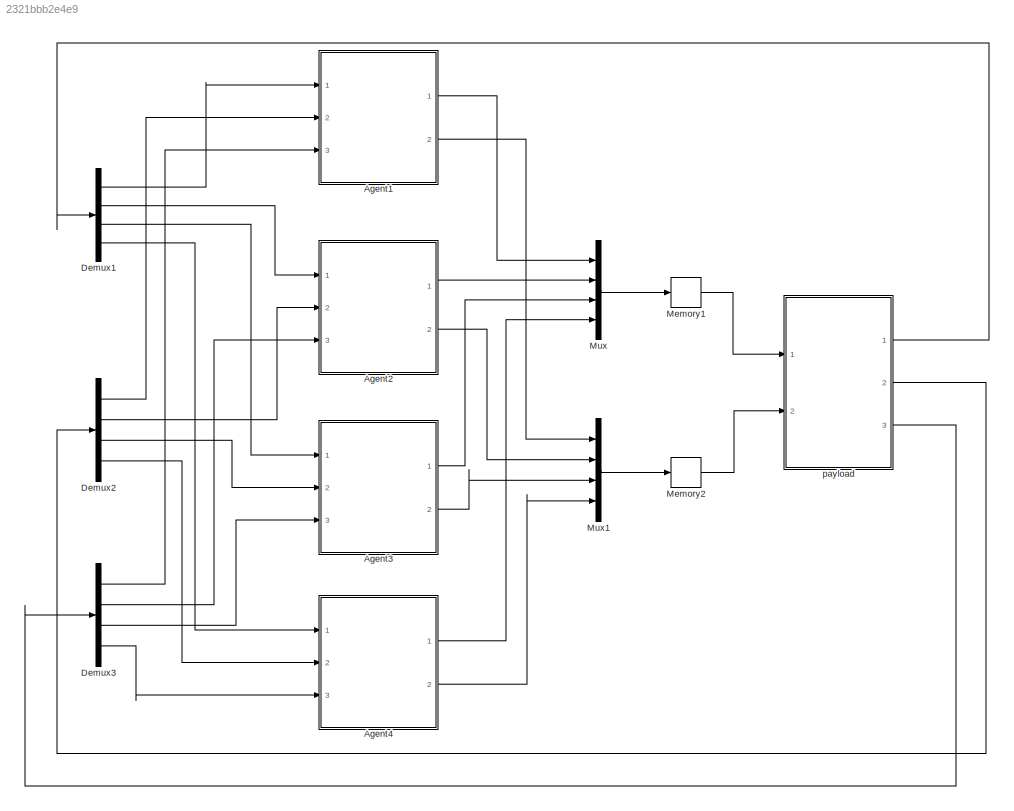
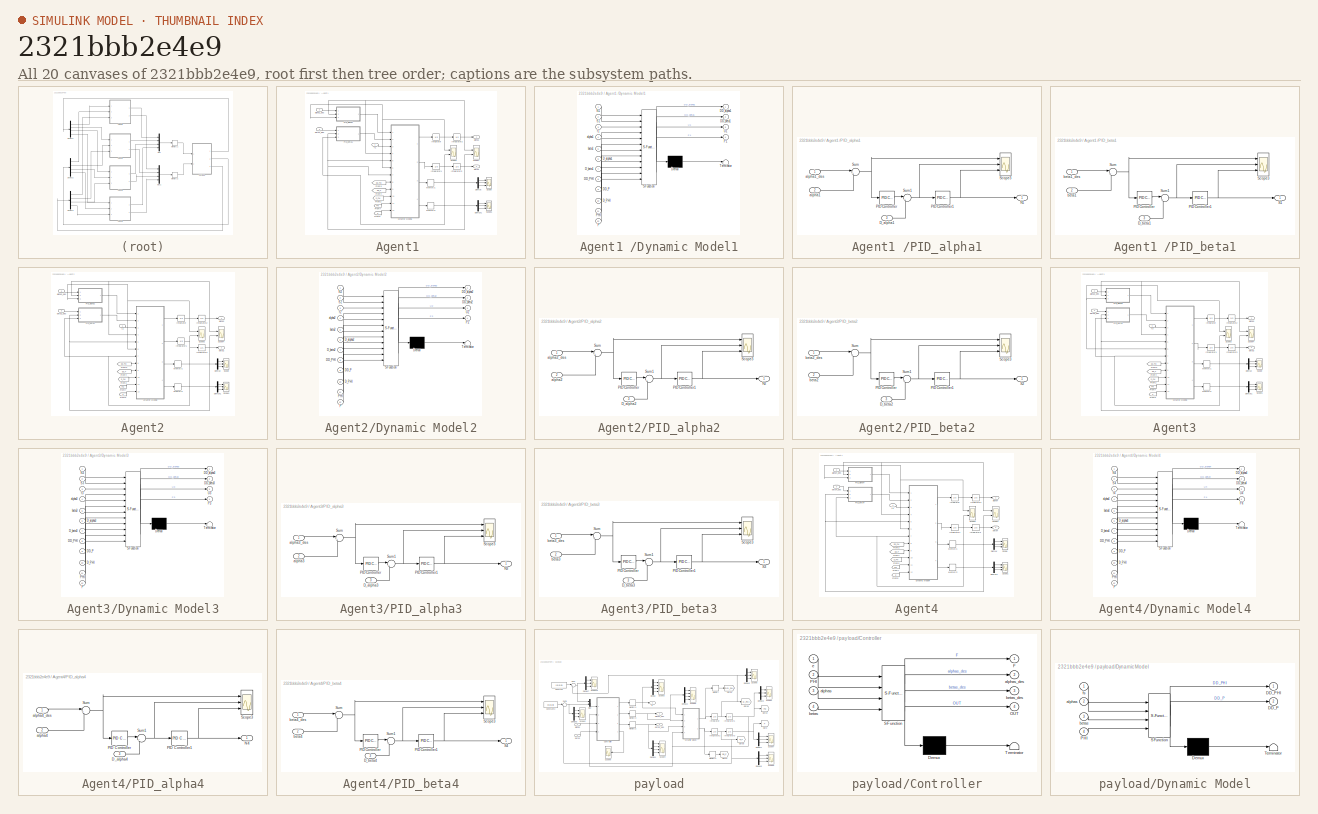
[diagram: thumbnail index - all 20 canvases of the model, root first then tree order]
MODEL slx_2321bbb2e4e9
KIND model
CONFIG AbsTol = auto
CONFIG EnableMultiTasking = off
CONFIG FixedStep = auto
CONFIG InitFcn = Simple_4Quad_payload_01_const
CONFIG MaxStep = auto
CONFIG MinStep = auto
CONFIG RelTol = 1e-3
CONFIG SampleTimeConstraint = Unconstrained
CONFIG Solver = VariableStepAuto
CONFIG SolverName = VariableStepAuto
CONFIG StartTime = 0.0
CONFIG StopTime = 60
BLOCK [SubSystem] Agent1 
  Ports = [3, 2]
  RequestExecContextInheritance = off
BLOCK [Demux] Agent1 /Demux
  DisplayOption = bar
  Outputs = 3
  Ports = [1, 3]
BLOCK [Demux] Agent1 /Demux1
  DisplayOption = bar
  Outputs = 3
  Ports = [1, 3]
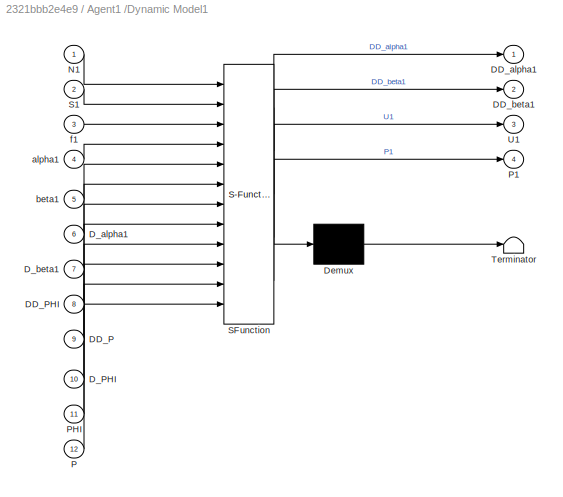
BLOCK [SubSystem] Agent1 /Dynamic Model1
  ErrorFcn = Stateflow.Translate.translate
  PermitHierarchicalResolution = ExplicitOnly
  Ports = [12, 4]
  RequestExecContextInheritance = off
  SFBlockType = MATLAB Function
  TreatAsAtomicUnit = on
BLOCK [Demux] Agent1 /Dynamic Model1/ Demux 
  Outputs = 1
  Ports = [1, 1]
BLOCK [S-Function] Agent1 /Dynamic Model1/ SFunction 
  EnableBusSupport = on
  FunctionName = sf_sfun
  Parameters = d1,g,l,m
  PortCounts = [12 5]
  Ports = [12, 5]
  SFcnIsStateOwnerBlock = off
  SFunctionDeploymentMode = off
  Tag = Stateflow S-Function Simple_4Quad_payload_01 4
BLOCK [Terminator] Agent1 /Dynamic Model1/ Terminator 
BLOCK [Inport] Agent1 /Dynamic Model1/DD_P
  IconDisplay = Port number
  Port = 9
BLOCK [Inport] Agent1 /Dynamic Model1/DD_PHI
  IconDisplay = Port number
  Port = 8
BLOCK [Outport] Agent1 /Dynamic Model1/DD_alpha1
  IconDisplay = Port number
BLOCK [Outport] Agent1 /Dynamic Model1/DD_beta1
  IconDisplay = Port number
  Port = 2
BLOCK [Inport] Agent1 /Dynamic Model1/D_PHI
  IconDisplay = Port number
  Port = 10
BLOCK [Inport] Agent1 /Dynamic Model1/D_alpha1
  IconDisplay = Port number
  Port = 6
BLOCK [Inport] Agent1 /Dynamic Model1/D_beta1
  IconDisplay = Port number
  Port = 7
BLOCK [Inport] Agent1 /Dynamic Model1/N1
  IconDisplay = Port number
BLOCK [Inport] Agent1 /Dynamic Model1/P
  IconDisplay = Port number
  Port = 12
BLOCK [Outport] Agent1 /Dynamic Model1/P1
  IconDisplay = Port number
  Port = 4
BLOCK [Inport] Agent1 /Dynamic Model1/PHI
  IconDisplay = Port number
  Port = 11
BLOCK [Inport] Agent1 /Dynamic Model1/S1
  IconDisplay = Port number
  Port = 2
BLOCK [Outport] Agent1 /Dynamic Model1/U1
  IconDisplay = Port number
  Port = 3
BLOCK [Inport] Agent1 /Dynamic Model1/alpha1
  IconDisplay = Port number
  Port = 4
BLOCK [Inport] Agent1 /Dynamic Model1/beta1
  IconDisplay = Port number
  Port = 5
BLOCK [Inport] Agent1 /Dynamic Model1/f1
  IconDisplay = Port number
  Port = 3
BLOCK [From] Agent1 /From2
  GotoTag = D_PHI
  TagVisibility = global
BLOCK [From] Agent1 /From3
  GotoTag = DD_PHI
  TagVisibility = global
BLOCK [From] Agent1 /From4
  GotoTag = DD_P
  TagVisibility = global
BLOCK [From] Agent1 /From5
  GotoTag = P
  TagVisibility = global
BLOCK [From] Agent1 /From7
  GotoTag = PHI
  TagVisibility = global
BLOCK [Integrator] Agent1 /Integrator
  Ports = [1, 1]
BLOCK [Integrator] Agent1 /Integrator1
  Ports = [1, 1]
BLOCK [Integrator] Agent1 /Integrator2
  InitialCondition = pi/2
  Ports = [1, 1]
BLOCK [Integrator] Agent1 /Integrator3
  Ports = [1, 1]
BLOCK [Memory] Agent1 /Memory1
  InitialCondition = zeros(3,1)
BLOCK [Memory] Agent1 /Memory2
  InitialCondition = zeros(3,1)
BLOCK [SubSystem] Agent1 /PID_alpha1
  Ports = [3, 1]
  RequestExecContextInheritance = off
BLOCK [Inport] Agent1 /PID_alpha1/D_alpha1
  IconDisplay = Port number
  Port = 3
BLOCK [Outport] Agent1 /PID_alpha1/N1
  IconDisplay = Port number
BLOCK [Reference] Agent1 /PID_alpha1/PID Controller  REF=simulink/Continuous/PID Controller
  Ports = [1, 1]
  SourceBlock = simulink/Continuous/PID Controller
  SourceProductBaseCode = SL
  SourceProductName = Simulink
  SourceType = PID 1dof
BLOCK [Reference] Agent1 /PID_alpha1/PID Controller1  REF=simulink/Continuous/PID Controller
  Ports = [1, 1]
  SourceBlock = simulink/Continuous/PID Controller
  SourceProductBaseCode = SL
  SourceProductName = Simulink
  SourceType = PID 1dof
BLOCK [Scope] Agent1 /PID_alpha1/Scope3
  Floating = off
  NumInputPorts = 3
  Ports = [3]
  ScopeSpecificationString = Simulink.scopes.TimeScopeBlockCfg('CurrentConfiguration', extmgr.ConfigurationSet(extmgr.Configuration('Core','General UI',true),extmgr.Configuration('Core','Source UI',true),extmgr.Configuration('Sources','WiredSimulink',true,'DataLoggingVariableName','ScopeData12'),extmgr.Configuration('Visuals','Time Domain',true,'SerializedDisplays',{struct('MinYLimReal','-1.76763','MaxYLimReal','0.2007','YLab...<+2680ch>  <repeated x8 — deduplicated; at blocks: Scope3>
BLOCK [Sum] Agent1 /PID_alpha1/Sum
  IconShape = round
  InputSameDT = off
  Inputs = |+-
  OutDataTypeStr = Inherit: Inherit via internal rule
  Ports = [2, 1]
  SaturateOnIntegerOverflow = off
BLOCK [Sum] Agent1 /PID_alpha1/Sum1
  IconShape = round
  InputSameDT = off
  Inputs = |+-
  OutDataTypeStr = Inherit: Inherit via internal rule
  Ports = [2, 1]
  SaturateOnIntegerOverflow = off
BLOCK [Inport] Agent1 /PID_alpha1/alpha1
  IconDisplay = Port number
  Port = 2
BLOCK [Inport] Agent1 /PID_alpha1/alpha1_des
  IconDisplay = Port number
BLOCK [SubSystem] Agent1 /PID_beta1
  Ports = [3, 1]
  RequestExecContextInheritance = off
BLOCK [Inport] Agent1 /PID_beta1/D_beta1
  IconDisplay = Port number
  Port = 3
BLOCK [Reference] Agent1 /PID_beta1/PID Controller  REF=simulink/Continuous/PID Controller
  Ports = [1, 1]
  SourceBlock = simulink/Continuous/PID Controller
  SourceProductBaseCode = SL
  SourceProductName = Simulink
  SourceType = PID 1dof
BLOCK [Reference] Agent1 /PID_beta1/PID Controller1  REF=simulink/Continuous/PID Controller
  Ports = [1, 1]
  SourceBlock = simulink/Continuous/PID Controller
  SourceProductBaseCode = SL
  SourceProductName = Simulink
  SourceType = PID 1dof
BLOCK [Outport] Agent1 /PID_beta1/S1
  IconDisplay = Port number
BLOCK [Scope] Agent1 /PID_beta1/Scope3
  Floating = off
  NumInputPorts = 3
  Ports = [3]
BLOCK [Sum] Agent1 /PID_beta1/Sum
  IconShape = round
  InputSameDT = off
  Inputs = |+-
  OutDataTypeStr = Inherit: Inherit via internal rule
  Ports = [2, 1]
  SaturateOnIntegerOverflow = off
BLOCK [Sum] Agent1 /PID_beta1/Sum1
  IconShape = round
  InputSameDT = off
  Inputs = |+-
  OutDataTypeStr = Inherit: Inherit via internal rule
  Ports = [2, 1]
  SaturateOnIntegerOverflow = off
BLOCK [Inport] Agent1 /PID_beta1/beta1
  IconDisplay = Port number
  Port = 2
BLOCK [Inport] Agent1 /PID_beta1/beta1_des
  IconDisplay = Port number
BLOCK [Scope] Agent1 /Scope
  Floating = off
  NumInputPorts = 3
  Ports = [3]
  ScopeSpecificationString = Simulink.scopes.TimeScopeBlockCfg('CurrentConfiguration', extmgr.ConfigurationSet(extmgr.Configuration('Core','General UI',true),extmgr.Configuration('Core','Source UI',true),extmgr.Configuration('Sources','WiredSimulink',true,'DataLoggingVariableName','ScopeData6'),extmgr.Configuration('Visuals','Time Domain',true,'SerializedDisplays',{struct('MinYLimReal','-202.65399','MaxYLimReal','1767.84636',...<+2859ch>  <repeated x4 — deduplicated; at blocks: Scope>
BLOCK [Scope] Agent1 /Scope1
  Floating = off
  NumInputPorts = 3
  Ports = [3]
  ScopeSpecificationString = Simulink.scopes.TimeScopeBlockCfg('CurrentConfiguration', extmgr.ConfigurationSet(extmgr.Configuration('Core','General UI',true),extmgr.Configuration('Core','Source UI',true),extmgr.Configuration('Sources','WiredSimulink',true,'DataLoggingVariableName','ScopeData9'),extmgr.Configuration('Visuals','Time Domain',true,'SerializedDisplays',{struct('MinYLimReal','-202.65399','MaxYLimReal','1767.84636',...<+2859ch>  <repeated x4 — deduplicated; at blocks: Scope1>
BLOCK [Scope] Agent1 /Scope2
  Floating = off
  NumInputPorts = 2
  Ports = [2]
  ScopeSpecificationString = Simulink.scopes.TimeScopeBlockCfg('CurrentConfiguration', extmgr.ConfigurationSet(extmgr.Configuration('Core','General UI',true),extmgr.Configuration('Core','Source UI',true),extmgr.Configuration('Sources','WiredSimulink',true,'DataLoggingVariableName','ScopeData9'),extmgr.Configuration('Visuals','Time Domain',true,'SerializedDisplays',{struct('MinYLimReal','-1.00000','MaxYLimReal','1.00000','YLab...<+2312ch>  <repeated x4 — deduplicated; at blocks: Scope2>
BLOCK [Scope] Agent1 /Scope4
  Floating = off
  NumInputPorts = 2
  Ports = [2]
  ScopeSpecificationString = Simulink.scopes.TimeScopeBlockCfg('CurrentConfiguration', extmgr.ConfigurationSet(extmgr.Configuration('Core','General UI',true),extmgr.Configuration('Core','Source UI',true),extmgr.Configuration('Sources','WiredSimulink',true,'DataLoggingVariableName','ScopeData10'),extmgr.Configuration('Visuals','Time Domain',true,'SerializedDisplays',{struct('MinYLimReal','-1.00000','MaxYLimReal','1.00000','YLa...<+2313ch>  <repeated x4 — deduplicated; at blocks: Scope4>
BLOCK [Outport] Agent1 /alpha1
  IconDisplay = Port number
BLOCK [Inport] Agent1 /alpha1_des
  IconDisplay = Port number
  Port = 2
BLOCK [Outport] Agent1 /beta1
  IconDisplay = Port number
  Port = 2
BLOCK [Inport] Agent1 /beta1_des
  IconDisplay = Port number
  Port = 3
BLOCK [Inport] Agent1 /f1
  IconDisplay = Port number
BLOCK [SubSystem] Agent2
  Ports = [3, 2]
  RequestExecContextInheritance = off
BLOCK [Demux] Agent2/Demux
  DisplayOption = bar
  Outputs = 3
  Ports = [1, 3]
BLOCK [Demux] Agent2/Demux1
  DisplayOption = bar
  Outputs = 3
  Ports = [1, 3]
BLOCK [SubSystem] Agent2/Dynamic Model2
  ErrorFcn = Stateflow.Translate.translate
  PermitHierarchicalResolution = ExplicitOnly
  Ports = [12, 4]
  RequestExecContextInheritance = off
  SFBlockType = MATLAB Function
  TreatAsAtomicUnit = on
BLOCK [Demux] Agent2/Dynamic Model2/ Demux 
  Outputs = 1
  Ports = [1, 1]
BLOCK [S-Function] Agent2/Dynamic Model2/ SFunction 
  EnableBusSupport = on
  FunctionName = sf_sfun
  Parameters = d1,g,l,m
  PortCounts = [12 5]
  Ports = [12, 5]
  SFcnIsStateOwnerBlock = off
  SFunctionDeploymentMode = off
  Tag = Stateflow S-Function Simple_4Quad_payload_01 3
BLOCK [Terminator] Agent2/Dynamic Model2/ Terminator 
BLOCK [Inport] Agent2/Dynamic Model2/DD_P
  IconDisplay = Port number
  Port = 9
BLOCK [Inport] Agent2/Dynamic Model2/DD_PHI
  IconDisplay = Port number
  Port = 8
BLOCK [Outport] Agent2/Dynamic Model2/DD_alpha2
  IconDisplay = Port number
BLOCK [Outport] Agent2/Dynamic Model2/DD_beta2
  IconDisplay = Port number
  Port = 2
BLOCK [Inport] Agent2/Dynamic Model2/D_PHI
  IconDisplay = Port number
  Port = 10
BLOCK [Inport] Agent2/Dynamic Model2/D_alpha2
  IconDisplay = Port number
  Port = 6
BLOCK [Inport] Agent2/Dynamic Model2/D_beta2
  IconDisplay = Port number
  Port = 7
BLOCK [Inport] Agent2/Dynamic Model2/N2
  IconDisplay = Port number
BLOCK [Inport] Agent2/Dynamic Model2/P
  IconDisplay = Port number
  Port = 12
BLOCK [Outport] Agent2/Dynamic Model2/P2
  IconDisplay = Port number
  Port = 4
BLOCK [Inport] Agent2/Dynamic Model2/PHI
  IconDisplay = Port number
  Port = 11
BLOCK [Inport] Agent2/Dynamic Model2/S2
  IconDisplay = Port number
  Port = 2
BLOCK [Outport] Agent2/Dynamic Model2/U2
  IconDisplay = Port number
  Port = 3
BLOCK [Inport] Agent2/Dynamic Model2/alpha2
  IconDisplay = Port number
  Port = 4
BLOCK [Inport] Agent2/Dynamic Model2/beta2
  IconDisplay = Port number
  Port = 5
BLOCK [Inport] Agent2/Dynamic Model2/f2
  IconDisplay = Port number
  Port = 3
BLOCK [From] Agent2/From2
  GotoTag = D_PHI
  TagVisibility = global
BLOCK [From] Agent2/From3
  GotoTag = DD_PHI
  TagVisibility = global
BLOCK [From] Agent2/From4
  GotoTag = DD_P
  TagVisibility = global
BLOCK [From] Agent2/From5
  GotoTag = P
  TagVisibility = global
BLOCK [From] Agent2/From7
  GotoTag = PHI
  TagVisibility = global
BLOCK [Integrator] Agent2/Integrator
  Ports = [1, 1]
BLOCK [Integrator] Agent2/Integrator1
  Ports = [1, 1]
BLOCK [Integrator] Agent2/Integrator2
  InitialCondition = pi/2
  Ports = [1, 1]
BLOCK [Integrator] Agent2/Integrator3
  Ports = [1, 1]
BLOCK [Memory] Agent2/Memory1
  InitialCondition = zeros(3,1)
BLOCK [Memory] Agent2/Memory2
  InitialCondition = zeros(3,1)
BLOCK [SubSystem] Agent2/PID_alpha2
  Ports = [3, 1]
  RequestExecContextInheritance = off
BLOCK [Inport] Agent2/PID_alpha2/D_alpha2
  IconDisplay = Port number
  Port = 3
BLOCK [Outport] Agent2/PID_alpha2/N2
  IconDisplay = Port number
BLOCK [Reference] Agent2/PID_alpha2/PID Controller  REF=simulink/Continuous/PID Controller
  Ports = [1, 1]
  SourceBlock = simulink/Continuous/PID Controller
  SourceProductBaseCode = SL
  SourceProductName = Simulink
  SourceType = PID 1dof
BLOCK [Reference] Agent2/PID_alpha2/PID Controller1  REF=simulink/Continuous/PID Controller
  Ports = [1, 1]
  SourceBlock = simulink/Continuous/PID Controller
  SourceProductBaseCode = SL
  SourceProductName = Simulink
  SourceType = PID 1dof
BLOCK [Scope] Agent2/PID_alpha2/Scope3
  Floating = off
  NumInputPorts = 3
  Ports = [3]
BLOCK [Sum] Agent2/PID_alpha2/Sum
  IconShape = round
  InputSameDT = off
  Inputs = |+-
  OutDataTypeStr = Inherit: Inherit via internal rule
  Ports = [2, 1]
  SaturateOnIntegerOverflow = off
BLOCK [Sum] Agent2/PID_alpha2/Sum1
  IconShape = round
  InputSameDT = off
  Inputs = |+-
  OutDataTypeStr = Inherit: Inherit via internal rule
  Ports = [2, 1]
  SaturateOnIntegerOverflow = off
BLOCK [Inport] Agent2/PID_alpha2/alpha2
  IconDisplay = Port number
  Port = 2
BLOCK [Inport] Agent2/PID_alpha2/alpha2_des
  IconDisplay = Port number
BLOCK [SubSystem] Agent2/PID_beta2
  Ports = [3, 1]
  RequestExecContextInheritance = off
BLOCK [Inport] Agent2/PID_beta2/D_beta2
  IconDisplay = Port number
  Port = 3
BLOCK [Reference] Agent2/PID_beta2/PID Controller  REF=simulink/Continuous/PID Controller
  Ports = [1, 1]
  SourceBlock = simulink/Continuous/PID Controller
  SourceProductBaseCode = SL
  SourceProductName = Simulink
  SourceType = PID 1dof
BLOCK [Reference] Agent2/PID_beta2/PID Controller1  REF=simulink/Continuous/PID Controller
  Ports = [1, 1]
  SourceBlock = simulink/Continuous/PID Controller
  SourceProductBaseCode = SL
  SourceProductName = Simulink
  SourceType = PID 1dof
BLOCK [Outport] Agent2/PID_beta2/S2
  IconDisplay = Port number
BLOCK [Scope] Agent2/PID_beta2/Scope3
  Floating = off
  NumInputPorts = 3
  Ports = [3]
BLOCK [Sum] Agent2/PID_beta2/Sum
  IconShape = round
  InputSameDT = off
  Inputs = |+-
  OutDataTypeStr = Inherit: Inherit via internal rule
  Ports = [2, 1]
  SaturateOnIntegerOverflow = off
BLOCK [Sum] Agent2/PID_beta2/Sum1
  IconShape = round
  InputSameDT = off
  Inputs = |+-
  OutDataTypeStr = Inherit: Inherit via internal rule
  Ports = [2, 1]
  SaturateOnIntegerOverflow = off
BLOCK [Inport] Agent2/PID_beta2/beta2
  IconDisplay = Port number
  Port = 2
BLOCK [Inport] Agent2/PID_beta2/beta2_des
  IconDisplay = Port number
BLOCK [Scope] Agent2/Scope
  Floating = off
  NumInputPorts = 3
  Ports = [3]
BLOCK [Scope] Agent2/Scope1
  Floating = off
  NumInputPorts = 3
  Ports = [3]
BLOCK [Scope] Agent2/Scope2
  Floating = off
  NumInputPorts = 2
  Ports = [2]
BLOCK [Scope] Agent2/Scope4
  Floating = off
  NumInputPorts = 2
  Ports = [2]
BLOCK [Outport] Agent2/alpha2
  IconDisplay = Port number
BLOCK [Inport] Agent2/alpha2_des
  IconDisplay = Port number
  Port = 2
BLOCK [Outport] Agent2/beta2
  IconDisplay = Port number
  Port = 2
BLOCK [Inport] Agent2/beta2_des
  IconDisplay = Port number
  Port = 3
BLOCK [Inport] Agent2/f2
  IconDisplay = Port number
BLOCK [SubSystem] Agent3
  Ports = [3, 2]
  RequestExecContextInheritance = off
BLOCK [Demux] Agent3/Demux
  DisplayOption = bar
  Outputs = 3
  Ports = [1, 3]
BLOCK [Demux] Agent3/Demux1
  DisplayOption = bar
  Outputs = 3
  Ports = [1, 3]
BLOCK [SubSystem] Agent3/Dynamic Model3
  ErrorFcn = Stateflow.Translate.translate
  PermitHierarchicalResolution = ExplicitOnly
  Ports = [12, 4]
  RequestExecContextInheritance = off
  SFBlockType = MATLAB Function
  TreatAsAtomicUnit = on
BLOCK [Demux] Agent3/Dynamic Model3/ Demux 
  Outputs = 1
  Ports = [1, 1]
BLOCK [S-Function] Agent3/Dynamic Model3/ SFunction 
  EnableBusSupport = on
  FunctionName = sf_sfun
  Parameters = d2,g,l,m
  PortCounts = [12 5]
  Ports = [12, 5]
  SFcnIsStateOwnerBlock = off
  SFunctionDeploymentMode = off
  Tag = Stateflow S-Function Simple_4Quad_payload_01 6
BLOCK [Terminator] Agent3/Dynamic Model3/ Terminator 
BLOCK [Inport] Agent3/Dynamic Model3/DD_P
  IconDisplay = Port number
  Port = 9
BLOCK [Inport] Agent3/Dynamic Model3/DD_PHI
  IconDisplay = Port number
  Port = 8
BLOCK [Outport] Agent3/Dynamic Model3/DD_alpha3
  IconDisplay = Port number
BLOCK [Outport] Agent3/Dynamic Model3/DD_beta3
  IconDisplay = Port number
  Port = 2
BLOCK [Inport] Agent3/Dynamic Model3/D_PHI
  IconDisplay = Port number
  Port = 10
BLOCK [Inport] Agent3/Dynamic Model3/D_alpha3
  IconDisplay = Port number
  Port = 6
BLOCK [Inport] Agent3/Dynamic Model3/D_beta3
  IconDisplay = Port number
  Port = 7
BLOCK [Inport] Agent3/Dynamic Model3/N3
  IconDisplay = Port number
BLOCK [Inport] Agent3/Dynamic Model3/P
  IconDisplay = Port number
  Port = 12
BLOCK [Outport] Agent3/Dynamic Model3/P3
  IconDisplay = Port number
  Port = 4
BLOCK [Inport] Agent3/Dynamic Model3/PHI
  IconDisplay = Port number
  Port = 11
BLOCK [Inport] Agent3/Dynamic Model3/S3
  IconDisplay = Port number
  Port = 2
BLOCK [Outport] Agent3/Dynamic Model3/U3
  IconDisplay = Port number
  Port = 3
BLOCK [Inport] Agent3/Dynamic Model3/alpha3
  IconDisplay = Port number
  Port = 4
BLOCK [Inport] Agent3/Dynamic Model3/beta3
  IconDisplay = Port number
  Port = 5
BLOCK [Inport] Agent3/Dynamic Model3/f3
  IconDisplay = Port number
  Port = 3
BLOCK [From] Agent3/From2
  GotoTag = D_PHI
  TagVisibility = global
BLOCK [From] Agent3/From3
  GotoTag = DD_PHI
  TagVisibility = global
BLOCK [From] Agent3/From4
  GotoTag = DD_P
  TagVisibility = global
BLOCK [From] Agent3/From5
  GotoTag = P
  TagVisibility = global
BLOCK [From] Agent3/From7
  GotoTag = PHI
  TagVisibility = global
BLOCK [Integrator] Agent3/Integrator
  Ports = [1, 1]
BLOCK [Integrator] Agent3/Integrator1
  Ports = [1, 1]
BLOCK [Integrator] Agent3/Integrator2
  InitialCondition = pi/2
  Ports = [1, 1]
BLOCK [Integrator] Agent3/Integrator3
  Ports = [1, 1]
BLOCK [Memory] Agent3/Memory1
  InitialCondition = zeros(3,1)
BLOCK [Memory] Agent3/Memory2
  InitialCondition = zeros(3,1)
BLOCK [SubSystem] Agent3/PID_alpha3
  Ports = [3, 1]
  RequestExecContextInheritance = off
BLOCK [Inport] Agent3/PID_alpha3/D_alpha3
  IconDisplay = Port number
  Port = 3
BLOCK [Outport] Agent3/PID_alpha3/N3
  IconDisplay = Port number
BLOCK [Reference] Agent3/PID_alpha3/PID Controller  REF=simulink/Continuous/PID Controller
  Ports = [1, 1]
  SourceBlock = simulink/Continuous/PID Controller
  SourceProductBaseCode = SL
  SourceProductName = Simulink
  SourceType = PID 1dof
BLOCK [Reference] Agent3/PID_alpha3/PID Controller1  REF=simulink/Continuous/PID Controller
  Ports = [1, 1]
  SourceBlock = simulink/Continuous/PID Controller
  SourceProductBaseCode = SL
  SourceProductName = Simulink
  SourceType = PID 1dof
BLOCK [Scope] Agent3/PID_alpha3/Scope3
  Floating = off
  NumInputPorts = 3
  Ports = [3]
BLOCK [Sum] Agent3/PID_alpha3/Sum
  IconShape = round
  InputSameDT = off
  Inputs = |+-
  OutDataTypeStr = Inherit: Inherit via internal rule
  Ports = [2, 1]
  SaturateOnIntegerOverflow = off
BLOCK [Sum] Agent3/PID_alpha3/Sum1
  IconShape = round
  InputSameDT = off
  Inputs = |+-
  OutDataTypeStr = Inherit: Inherit via internal rule
  Ports = [2, 1]
  SaturateOnIntegerOverflow = off
BLOCK [Inport] Agent3/PID_alpha3/alpha3
  IconDisplay = Port number
  Port = 2
BLOCK [Inport] Agent3/PID_alpha3/alpha3_des
  IconDisplay = Port number
BLOCK [SubSystem] Agent3/PID_beta3
  Ports = [3, 1]
  RequestExecContextInheritance = off
BLOCK [Inport] Agent3/PID_beta3/D_beta3
  IconDisplay = Port number
  Port = 3
BLOCK [Reference] Agent3/PID_beta3/PID Controller  REF=simulink/Continuous/PID Controller
  Ports = [1, 1]
  SourceBlock = simulink/Continuous/PID Controller
  SourceProductBaseCode = SL
  SourceProductName = Simulink
  SourceType = PID 1dof
BLOCK [Reference] Agent3/PID_beta3/PID Controller1  REF=simulink/Continuous/PID Controller
  Ports = [1, 1]
  SourceBlock = simulink/Continuous/PID Controller
  SourceProductBaseCode = SL
  SourceProductName = Simulink
  SourceType = PID 1dof
BLOCK [Outport] Agent3/PID_beta3/S3
  IconDisplay = Port number
BLOCK [Scope] Agent3/PID_beta3/Scope3
  Floating = off
  NumInputPorts = 3
  Ports = [3]
BLOCK [Sum] Agent3/PID_beta3/Sum
  IconShape = round
  InputSameDT = off
  Inputs = |+-
  OutDataTypeStr = Inherit: Inherit via internal rule
  Ports = [2, 1]
  SaturateOnIntegerOverflow = off
BLOCK [Sum] Agent3/PID_beta3/Sum1
  IconShape = round
  InputSameDT = off
  Inputs = |+-
  OutDataTypeStr = Inherit: Inherit via internal rule
  Ports = [2, 1]
  SaturateOnIntegerOverflow = off
BLOCK [Inport] Agent3/PID_beta3/beta3
  IconDisplay = Port number
  Port = 2
BLOCK [Inport] Agent3/PID_beta3/beta3_des
  IconDisplay = Port number
BLOCK [Scope] Agent3/Scope
  Floating = off
  NumInputPorts = 3
  Ports = [3]
BLOCK [Scope] Agent3/Scope1
  Floating = off
  NumInputPorts = 3
  Ports = [3]
BLOCK [Scope] Agent3/Scope2
  Floating = off
  NumInputPorts = 2
  Ports = [2]
BLOCK [Scope] Agent3/Scope4
  Floating = off
  NumInputPorts = 2
  Ports = [2]
BLOCK [Outport] Agent3/alpha3
  IconDisplay = Port number
BLOCK [Inport] Agent3/alpha3_des
  IconDisplay = Port number
  Port = 2
BLOCK [Outport] Agent3/beta3
  IconDisplay = Port number
  Port = 2
BLOCK [Inport] Agent3/beta3_des
  IconDisplay = Port number
  Port = 3
BLOCK [Inport] Agent3/f3
  IconDisplay = Port number
BLOCK [SubSystem] Agent4
  Ports = [3, 2]
  RequestExecContextInheritance = off
BLOCK [Demux] Agent4/Demux
  DisplayOption = bar
  Outputs = 3
  Ports = [1, 3]
BLOCK [Demux] Agent4/Demux1
  DisplayOption = bar
  Outputs = 3
  Ports = [1, 3]
BLOCK [SubSystem] Agent4/Dynamic Model4
  ErrorFcn = Stateflow.Translate.translate
  PermitHierarchicalResolution = ExplicitOnly
  Ports = [12, 4]
  RequestExecContextInheritance = off
  SFBlockType = MATLAB Function
  TreatAsAtomicUnit = on
BLOCK [Demux] Agent4/Dynamic Model4/ Demux 
  Outputs = 1
  Ports = [1, 1]
BLOCK [S-Function] Agent4/Dynamic Model4/ SFunction 
  EnableBusSupport = on
  FunctionName = sf_sfun
  Parameters = d2,g,l,m
  PortCounts = [12 5]
  Ports = [12, 5]
  SFcnIsStateOwnerBlock = off
  SFunctionDeploymentMode = off
  Tag = Stateflow S-Function Simple_4Quad_payload_01 5
BLOCK [Terminator] Agent4/Dynamic Model4/ Terminator 
BLOCK [Inport] Agent4/Dynamic Model4/DD_P
  IconDisplay = Port number
  Port = 9
BLOCK [Inport] Agent4/Dynamic Model4/DD_PHI
  IconDisplay = Port number
  Port = 8
BLOCK [Outport] Agent4/Dynamic Model4/DD_alpha4
  IconDisplay = Port number
BLOCK [Outport] Agent4/Dynamic Model4/DD_beta4
  IconDisplay = Port number
  Port = 2
BLOCK [Inport] Agent4/Dynamic Model4/D_PHI
  IconDisplay = Port number
  Port = 10
BLOCK [Inport] Agent4/Dynamic Model4/D_alpha4
  IconDisplay = Port number
  Port = 6
BLOCK [Inport] Agent4/Dynamic Model4/D_beta4
  IconDisplay = Port number
  Port = 7
BLOCK [Inport] Agent4/Dynamic Model4/N4
  IconDisplay = Port number
BLOCK [Inport] Agent4/Dynamic Model4/P
  IconDisplay = Port number
  Port = 12
BLOCK [Outport] Agent4/Dynamic Model4/P4
  IconDisplay = Port number
  Port = 4
BLOCK [Inport] Agent4/Dynamic Model4/PHI
  IconDisplay = Port number
  Port = 11
BLOCK [Inport] Agent4/Dynamic Model4/S4
  IconDisplay = Port number
  Port = 2
BLOCK [Outport] Agent4/Dynamic Model4/U4
  IconDisplay = Port number
  Port = 3
BLOCK [Inport] Agent4/Dynamic Model4/alpha4
  IconDisplay = Port number
  Port = 4
BLOCK [Inport] Agent4/Dynamic Model4/beta4
  IconDisplay = Port number
  Port = 5
BLOCK [Inport] Agent4/Dynamic Model4/f4
  IconDisplay = Port number
  Port = 3
BLOCK [From] Agent4/From2
  GotoTag = D_PHI
  TagVisibility = global
BLOCK [From] Agent4/From3
  GotoTag = DD_PHI
  TagVisibility = global
BLOCK [From] Agent4/From4
  GotoTag = DD_P
  TagVisibility = global
BLOCK [From] Agent4/From5
  GotoTag = P
  TagVisibility = global
BLOCK [From] Agent4/From7
  GotoTag = PHI
  TagVisibility = global
BLOCK [Integrator] Agent4/Integrator
  Ports = [1, 1]
BLOCK [Integrator] Agent4/Integrator1
  Ports = [1, 1]
BLOCK [Integrator] Agent4/Integrator2
  InitialCondition = pi/2
  Ports = [1, 1]
BLOCK [Integrator] Agent4/Integrator3
  Ports = [1, 1]
BLOCK [Memory] Agent4/Memory1
  InitialCondition = zeros(3,1)
BLOCK [Memory] Agent4/Memory2
  InitialCondition = zeros(3,1)
BLOCK [SubSystem] Agent4/PID_alpha4
  Ports = [3, 1]
  RequestExecContextInheritance = off
BLOCK [Inport] Agent4/PID_alpha4/D_alpha4
  IconDisplay = Port number
  Port = 3
BLOCK [Outport] Agent4/PID_alpha4/N4
  IconDisplay = Port number
BLOCK [Reference] Agent4/PID_alpha4/PID Controller  REF=simulink/Continuous/PID Controller
  Ports = [1, 1]
  SourceBlock = simulink/Continuous/PID Controller
  SourceProductBaseCode = SL
  SourceProductName = Simulink
  SourceType = PID 1dof
BLOCK [Reference] Agent4/PID_alpha4/PID Controller1  REF=simulink/Continuous/PID Controller
  Ports = [1, 1]
  SourceBlock = simulink/Continuous/PID Controller
  SourceProductBaseCode = SL
  SourceProductName = Simulink
  SourceType = PID 1dof
BLOCK [Scope] Agent4/PID_alpha4/Scope3
  Floating = off
  NumInputPorts = 3
  Ports = [3]
BLOCK [Sum] Agent4/PID_alpha4/Sum
  IconShape = round
  InputSameDT = off
  Inputs = |+-
  OutDataTypeStr = Inherit: Inherit via internal rule
  Ports = [2, 1]
  SaturateOnIntegerOverflow = off
BLOCK [Sum] Agent4/PID_alpha4/Sum1
  IconShape = round
  InputSameDT = off
  Inputs = |+-
  OutDataTypeStr = Inherit: Inherit via internal rule
  Ports = [2, 1]
  SaturateOnIntegerOverflow = off
BLOCK [Inport] Agent4/PID_alpha4/alpha4
  IconDisplay = Port number
  Port = 2
BLOCK [Inport] Agent4/PID_alpha4/alpha4_des
  IconDisplay = Port number
BLOCK [SubSystem] Agent4/PID_beta4
  Ports = [3, 1]
  RequestExecContextInheritance = off
BLOCK [Inport] Agent4/PID_beta4/D_beta4
  IconDisplay = Port number
  Port = 3
BLOCK [Reference] Agent4/PID_beta4/PID Controller  REF=simulink/Continuous/PID Controller
  Ports = [1, 1]
  SourceBlock = simulink/Continuous/PID Controller
  SourceProductBaseCode = SL
  SourceProductName = Simulink
  SourceType = PID 1dof
BLOCK [Reference] Agent4/PID_beta4/PID Controller1  REF=simulink/Continuous/PID Controller
  Ports = [1, 1]
  SourceBlock = simulink/Continuous/PID Controller
  SourceProductBaseCode = SL
  SourceProductName = Simulink
  SourceType = PID 1dof
BLOCK [Outport] Agent4/PID_beta4/S4
  IconDisplay = Port number
BLOCK [Scope] Agent4/PID_beta4/Scope3
  Floating = off
  NumInputPorts = 3
  Ports = [3]
BLOCK [Sum] Agent4/PID_beta4/Sum
  IconShape = round
  InputSameDT = off
  Inputs = |+-
  OutDataTypeStr = Inherit: Inherit via internal rule
  Ports = [2, 1]
  SaturateOnIntegerOverflow = off
BLOCK [Sum] Agent4/PID_beta4/Sum1
  IconShape = round
  InputSameDT = off
  Inputs = |+-
  OutDataTypeStr = Inherit: Inherit via internal rule
  Ports = [2, 1]
  SaturateOnIntegerOverflow = off
BLOCK [Inport] Agent4/PID_beta4/beta4
  IconDisplay = Port number
  Port = 2
BLOCK [Inport] Agent4/PID_beta4/beta4_des
  IconDisplay = Port number
BLOCK [Scope] Agent4/Scope
  Floating = off
  NumInputPorts = 3
  Ports = [3]
BLOCK [Scope] Agent4/Scope1
  Floating = off
  NumInputPorts = 3
  Ports = [3]
BLOCK [Scope] Agent4/Scope2
  Floating = off
  NumInputPorts = 2
  Ports = [2]
BLOCK [Scope] Agent4/Scope4
  Floating = off
  NumInputPorts = 2
  Ports = [2]
BLOCK [Outport] Agent4/alpha4
  IconDisplay = Port number
BLOCK [Inport] Agent4/alpha4_des
  IconDisplay = Port number
  Port = 2
BLOCK [Outport] Agent4/beta4
  IconDisplay = Port number
  Port = 2
BLOCK [Inport] Agent4/beta4_des
  IconDisplay = Port number
  Port = 3
BLOCK [Inport] Agent4/f4
  IconDisplay = Port number
BLOCK [Demux] Demux1
  DisplayOption = bar
  Ports = [1, 4]
BLOCK [Demux] Demux2
  DisplayOption = bar
  Ports = [1, 4]
BLOCK [Demux] Demux3
  DisplayOption = bar
  Ports = [1, 4]
BLOCK [Memory] Memory1
  InitialCondition = zeros(4,1)
BLOCK [Memory] Memory2
  InitialCondition = zeros(4,1)
BLOCK [Mux] Mux
  DisplayOption = bar
  Ports = [4, 1]
BLOCK [Mux] Mux1
  DisplayOption = bar
  Ports = [4, 1]
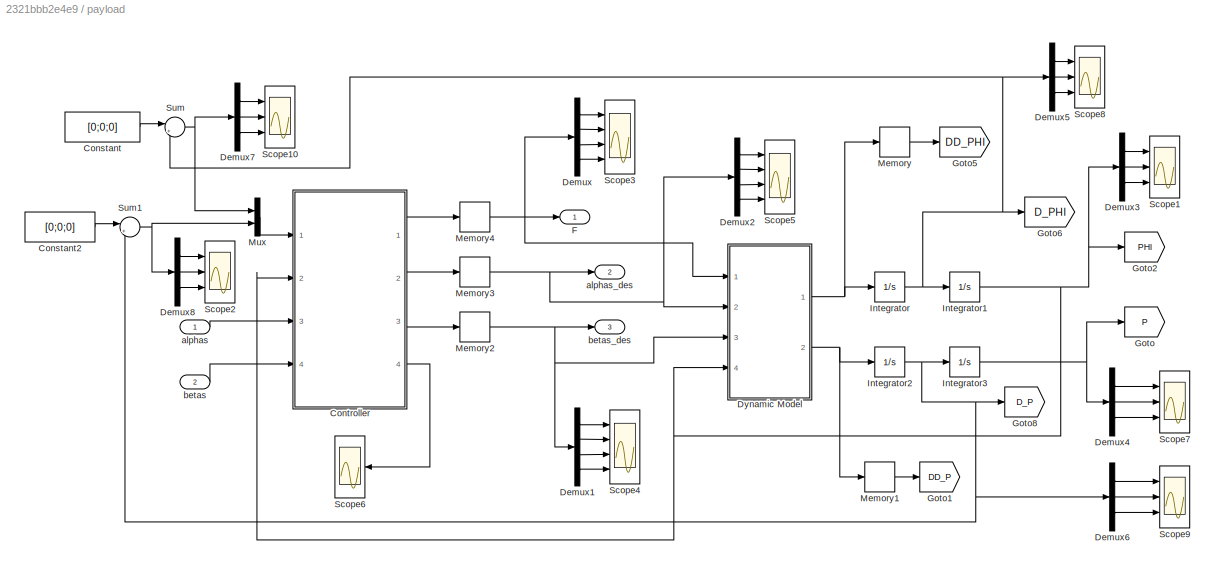
BLOCK [SubSystem] payload
  Ports = [2, 3]
  RequestExecContextInheritance = off
BLOCK [Constant] payload/Constant
  Value = [0;0;0]
BLOCK [Constant] payload/Constant2
  Value = [0;0;0]
BLOCK [SubSystem] payload/Controller
  ErrorFcn = Stateflow.Translate.translate
  PermitHierarchicalResolution = ExplicitOnly
  Ports = [4, 4]
  RequestExecContextInheritance = off
  SFBlockType = MATLAB Function
  TreatAsAtomicUnit = on
BLOCK [Demux] payload/Controller/ Demux 
  Outputs = 1
  Ports = [1, 1]
BLOCK [S-Function] payload/Controller/ SFunction 
  EnableBusSupport = on
  FunctionName = sf_sfun
  Parameters = Des_rel_dist,Ix,Iy,Iz,M,Md,d1,d2,g,l
  PortCounts = [4 5]
  Ports = [4, 5]
  SFcnIsStateOwnerBlock = off
  SFunctionDeploymentMode = off
  Tag = Stateflow S-Function Simple_4Quad_payload_01 1
BLOCK [Terminator] payload/Controller/ Terminator 
BLOCK [Outport] payload/Controller/F
  IconDisplay = Port number
BLOCK [Outport] payload/Controller/OUT
  IconDisplay = Port number
  Port = 4
BLOCK [Inport] payload/Controller/PHI
  IconDisplay = Port number
  Port = 2
BLOCK [Inport] payload/Controller/alphas
  IconDisplay = Port number
  Port = 3
BLOCK [Outport] payload/Controller/alphas_des
  IconDisplay = Port number
  Port = 2
BLOCK [Inport] payload/Controller/betas
  IconDisplay = Port number
  Port = 4
BLOCK [Outport] payload/Controller/betas_des
  IconDisplay = Port number
  Port = 3
BLOCK [Inport] payload/Controller/e
  IconDisplay = Port number
BLOCK [Demux] payload/Demux
  DisplayOption = bar
  Ports = [1, 4]
BLOCK [Demux] payload/Demux1
  DisplayOption = bar
  Ports = [1, 4]
BLOCK [Demux] payload/Demux2
  DisplayOption = bar
  Ports = [1, 4]
BLOCK [Demux] payload/Demux3
  DisplayOption = bar
  Outputs = 3
  Ports = [1, 3]
BLOCK [Demux] payload/Demux4
  DisplayOption = bar
  Outputs = 3
  Ports = [1, 3]
BLOCK [Demux] payload/Demux5
  DisplayOption = bar
  Outputs = 3
  Ports = [1, 3]
BLOCK [Demux] payload/Demux6
  DisplayOption = bar
  Outputs = 3
  Ports = [1, 3]
BLOCK [Demux] payload/Demux7
  DisplayOption = bar
  Outputs = 3
  Ports = [1, 3]
BLOCK [Demux] payload/Demux8
  DisplayOption = bar
  Outputs = 3
  Ports = [1, 3]
BLOCK [SubSystem] payload/Dynamic Model
  ErrorFcn = Stateflow.Translate.translate
  PermitHierarchicalResolution = ExplicitOnly
  Ports = [4, 2]
  RequestExecContextInheritance = off
  SFBlockType = MATLAB Function
  TreatAsAtomicUnit = on
BLOCK [Demux] payload/Dynamic Model/ Demux 
  Outputs = 1
  Ports = [1, 1]
BLOCK [S-Function] payload/Dynamic Model/ SFunction 
  EnableBusSupport = on
  FunctionName = sf_sfun
  Parameters = Ix,Iy,Iz,M,d1,d2,g
  PortCounts = [4 3]
  Ports = [4, 3]
  SFcnIsStateOwnerBlock = off
  SFunctionDeploymentMode = off
  Tag = Stateflow S-Function Simple_4Quad_payload_01 2
BLOCK [Terminator] payload/Dynamic Model/ Terminator 
BLOCK [Outport] payload/Dynamic Model/DD_P
  IconDisplay = Port number
  Port = 2
BLOCK [Outport] payload/Dynamic Model/DD_PHI
  IconDisplay = Port number
BLOCK [Inport] payload/Dynamic Model/PHI
  IconDisplay = Port number
  Port = 4
BLOCK [Inport] payload/Dynamic Model/alphas
  IconDisplay = Port number
  Port = 2
BLOCK [Inport] payload/Dynamic Model/betas
  IconDisplay = Port number
  Port = 3
BLOCK [Inport] payload/Dynamic Model/fs
  IconDisplay = Port number
BLOCK [Outport] payload/F
  IconDisplay = Port number
BLOCK [Goto] payload/Goto
  GotoTag = P
  TagVisibility = global
BLOCK [Goto] payload/Goto1
  GotoTag = DD_P
  TagVisibility = global
BLOCK [Goto] payload/Goto2
  GotoTag = PHI
  TagVisibility = global
BLOCK [Goto] payload/Goto5
  GotoTag = DD_PHI
  TagVisibility = global
BLOCK [Goto] payload/Goto6
  GotoTag = D_PHI
  TagVisibility = global
BLOCK [Goto] payload/Goto8
  GotoTag = D_P
  TagVisibility = global
BLOCK [Integrator] payload/Integrator
  InitialCondition = zeros(3,1)
  Ports = [1, 1]
BLOCK [Integrator] payload/Integrator1
  InitialCondition = zeros(3,1)
  Ports = [1, 1]
BLOCK [Integrator] payload/Integrator2
  InitialCondition = zeros(3,1)
  Ports = [1, 1]
BLOCK [Integrator] payload/Integrator3
  InitialCondition = [0;0;0]
  Ports = [1, 1]
BLOCK [Memory] payload/Memory
  InitialCondition = zeros(3,1)
BLOCK [Memory] payload/Memory1
  InitialCondition = zeros(3,1)
BLOCK [Memory] payload/Memory2
  InitialCondition = zeros(4,1)
BLOCK [Memory] payload/Memory3
  InitialCondition = zeros(4,1)
BLOCK [Memory] payload/Memory4
  InitialCondition = zeros(4,1)
BLOCK [Mux] payload/Mux
  DisplayOption = bar
  Inputs = 2
  Ports = [2, 1]
BLOCK [Scope] payload/Scope1
  Floating = off
  NumInputPorts = 3
  Ports = [3]
  ScopeSpecificationString = Simulink.scopes.TimeScopeBlockCfg('CurrentConfiguration', extmgr.ConfigurationSet(extmgr.Configuration('Core','General UI',true),extmgr.Configuration('Core','Source UI',true),extmgr.Configuration('Sources','WiredSimulink',true,'DataLoggingVariableName','ScopeData1'),extmgr.Configuration('Visuals','Time Domain',true,'SerializedDisplays',{struct('MinYLimReal','-1.00000','MaxYLimReal','1.00000','YLab...<+2753ch>
BLOCK [Scope] payload/Scope10
  Floating = off
  NumInputPorts = 3
  Ports = [3]
  ScopeSpecificationString = Simulink.scopes.TimeScopeBlockCfg('CurrentConfiguration', extmgr.ConfigurationSet(extmgr.Configuration('Core','General UI',true),extmgr.Configuration('Core','Source UI',true),extmgr.Configuration('Sources','WiredSimulink',true,'DataLoggingVariableName','ScopeData7'),extmgr.Configuration('Visuals','Time Domain',true,'SerializedDisplays',{struct('MinYLimReal','-1.00000','MaxYLimReal','1.00000','YLab...<+2753ch>
BLOCK [Scope] payload/Scope2
  Floating = off
  NumInputPorts = 3
  Ports = [3]
  ScopeSpecificationString = Simulink.scopes.TimeScopeBlockCfg('CurrentConfiguration', extmgr.ConfigurationSet(extmgr.Configuration('Core','General UI',true),extmgr.Configuration('Core','Source UI',true),extmgr.Configuration('Sources','WiredSimulink',true,'DataLoggingVariableName','ScopeData8'),extmgr.Configuration('Visuals','Time Domain',true,'SerializedDisplays',{struct('MinYLimReal','-1.00000','MaxYLimReal','1.00000','YLab...<+2753ch>
BLOCK [Scope] payload/Scope3
  Floating = off
  NumInputPorts = 4
  Ports = [4]
  ScopeSpecificationString = Simulink.scopes.TimeScopeBlockCfg('CurrentConfiguration', extmgr.ConfigurationSet(extmgr.Configuration('Core','General UI',true),extmgr.Configuration('Core','Source UI',true),extmgr.Configuration('Sources','WiredSimulink',true,'DataLoggingVariableName','ScopeData1'),extmgr.Configuration('Visuals','Time Domain',true,'SerializedDisplays',{struct('MinYLimReal','-1.00000','MaxYLimReal','1.00000','YLab...<+3430ch>
BLOCK [Scope] payload/Scope4
  Floating = off
  NumInputPorts = 4
  Ports = [4]
  ScopeSpecificationString = Simulink.scopes.TimeScopeBlockCfg('CurrentConfiguration', extmgr.ConfigurationSet(extmgr.Configuration('Core','General UI',true),extmgr.Configuration('Core','Source UI',true),extmgr.Configuration('Sources','WiredSimulink',true,'DataLoggingVariableName','ScopeData2'),extmgr.Configuration('Visuals','Time Domain',true,'SerializedDisplays',{struct('MinYLimReal','-1.00000','MaxYLimReal','1.00000','YLab...<+3737ch>
BLOCK [Scope] payload/Scope5
  Floating = off
  NumInputPorts = 4
  Ports = [4]
  ScopeSpecificationString = Simulink.scopes.TimeScopeBlockCfg('CurrentConfiguration', extmgr.ConfigurationSet(extmgr.Configuration('Core','General UI',true),extmgr.Configuration('Core','Source UI',true),extmgr.Configuration('Sources','WiredSimulink',true,'DataLoggingVariableName','ScopeData3'),extmgr.Configuration('Visuals','Time Domain',true,'SerializedDisplays',{struct('MinYLimReal','-1.00000','MaxYLimReal','1.00000','YLab...<+3737ch>
BLOCK [Scope] payload/Scope6
  Floating = off
  NumInputPorts = 1
  Ports = [1]
  ScopeSpecificationString = Simulink.scopes.TimeScopeBlockCfg('CurrentConfiguration', extmgr.ConfigurationSet(extmgr.Configuration('Core','General UI',true),extmgr.Configuration('Core','Source UI',true),extmgr.Configuration('Sources','WiredSimulink',true,'DataLoggingVariableName','ScopeData12'),extmgr.Configuration('Visuals','Time Domain',true,'SerializedDisplays',{struct('MinYLimReal','-1.33748','MaxYLimReal','11.9375','YLa...<+1489ch>
BLOCK [Scope] payload/Scope7
  Floating = off
  NumInputPorts = 3
  Ports = [3]
  ScopeSpecificationString = Simulink.scopes.TimeScopeBlockCfg('CurrentConfiguration', extmgr.ConfigurationSet(extmgr.Configuration('Core','General UI',true),extmgr.Configuration('Core','Source UI',true),extmgr.Configuration('Sources','WiredSimulink',true,'DataLoggingVariableName','ScopeData4'),extmgr.Configuration('Visuals','Time Domain',true,'SerializedDisplays',{struct('MinYLimReal','-1.00000','MaxYLimReal','1.00000','YLab...<+2753ch>
BLOCK [Scope] payload/Scope8
  Floating = off
  NumInputPorts = 3
  Ports = [3]
  ScopeSpecificationString = Simulink.scopes.TimeScopeBlockCfg('CurrentConfiguration', extmgr.ConfigurationSet(extmgr.Configuration('Core','General UI',true),extmgr.Configuration('Core','Source UI',true),extmgr.Configuration('Sources','WiredSimulink',true,'DataLoggingVariableName','ScopeData5'),extmgr.Configuration('Visuals','Time Domain',true,'SerializedDisplays',{struct('MinYLimReal','-1.00000','MaxYLimReal','1.00000','YLab...<+2753ch>
BLOCK [Scope] payload/Scope9
  Floating = off
  NumInputPorts = 3
  Ports = [3]
  ScopeSpecificationString = Simulink.scopes.TimeScopeBlockCfg('CurrentConfiguration', extmgr.ConfigurationSet(extmgr.Configuration('Core','General UI',true),extmgr.Configuration('Core','Source UI',true),extmgr.Configuration('Sources','WiredSimulink',true,'DataLoggingVariableName','ScopeData6'),extmgr.Configuration('Visuals','Time Domain',true,'SerializedDisplays',{struct('MinYLimReal','-1.00000','MaxYLimReal','1.00000','YLab...<+2753ch>
BLOCK [Sum] payload/Sum
  IconShape = round
  InputSameDT = off
  Inputs = |+-
  OutDataTypeStr = Inherit: Inherit via internal rule
  Ports = [2, 1]
  SaturateOnIntegerOverflow = off
BLOCK [Sum] payload/Sum1
  IconShape = round
  InputSameDT = off
  Inputs = |+-
  OutDataTypeStr = Inherit: Inherit via internal rule
  Ports = [2, 1]
  SaturateOnIntegerOverflow = off
BLOCK [Inport] payload/alphas
  IconDisplay = Port number
BLOCK [Outport] payload/alphas_des
  IconDisplay = Port number
  Port = 2
BLOCK [Inport] payload/betas
  IconDisplay = Port number
  Port = 2
BLOCK [Outport] payload/betas_des
  IconDisplay = Port number
  Port = 3
LINE Agent1 /Demux1:1 -> Agent1 /Scope1:1
LINE Agent1 /Demux1:2 -> Agent1 /Scope1:2
LINE Agent1 /Demux1:3 -> Agent1 /Scope1:3
LINE Agent1 /Demux:1 -> Agent1 /Scope:1
LINE Agent1 /Demux:2 -> Agent1 /Scope:2
LINE Agent1 /Demux:3 -> Agent1 /Scope:3
LINE Agent1 /Dynamic Model1:1 -> Agent1 /Integrator:1
LINE Agent1 /Dynamic Model1:2 -> Agent1 /Integrator1:1
LINE Agent1 /Dynamic Model1:3 -> Agent1 /Memory1:1
LINE Agent1 /Dynamic Model1:4 -> Agent1 /Memory2:1
LINE Agent1 /From2:1 -> Agent1 /Dynamic Model1:10
LINE Agent1 /From3:1 -> Agent1 /Dynamic Model1:8
LINE Agent1 /From4:1 -> Agent1 /Dynamic Model1:9
LINE Agent1 /From5:1 -> Agent1 /Dynamic Model1:12
LINE Agent1 /From7:1 -> Agent1 /Dynamic Model1:11
NET Agent1 /Integrator1:1 -> Agent1 /Integrator3:1, Agent1 /PID_beta1:3, Agent1 /Scope2:2
NET Agent1 /Integrator2:1 -> Agent1 /Dynamic Model1:4, Agent1 /PID_alpha1:2, Agent1 /Scope4:1, Agent1 /alpha1:1
NET Agent1 /Integrator3:1 -> Agent1 /Dynamic Model1:5, Agent1 /Dynamic Model1:7, Agent1 /PID_beta1:2, Agent1 /Scope4:2, Agent1 /beta1:1
NET Agent1 /Integrator:1 -> Agent1 /Dynamic Model1:6, Agent1 /Integrator2:1, Agent1 /PID_alpha1:3, Agent1 /Scope2:1
LINE Agent1 /Memory1:1 -> Agent1 /Demux:1
LINE Agent1 /Memory2:1 -> Agent1 /Demux1:1
LINE Agent1 /PID_alpha1/D_alpha1:1 -> Agent1 /PID_alpha1/Sum1:2
NET Agent1 /PID_alpha1/PID Controller1:1 -> Agent1 /PID_alpha1/N1:1, Agent1 /PID_alpha1/Scope3:3
LINE Agent1 /PID_alpha1/PID Controller:1 -> Agent1 /PID_alpha1/Sum1:1
NET Agent1 /PID_alpha1/Sum1:1 -> Agent1 /PID_alpha1/PID Controller1:1, Agent1 /PID_alpha1/Scope3:2
NET Agent1 /PID_alpha1/Sum:1 -> Agent1 /PID_alpha1/PID Controller:1, Agent1 /PID_alpha1/Scope3:1
LINE Agent1 /PID_alpha1/alpha1:1 -> Agent1 /PID_alpha1/Sum:2
LINE Agent1 /PID_alpha1/alpha1_des:1 -> Agent1 /PID_alpha1/Sum:1
LINE Agent1 /PID_alpha1:1 -> Agent1 /Dynamic Model1:1
LINE Agent1 /PID_beta1/D_beta1:1 -> Agent1 /PID_beta1/Sum1:2
NET Agent1 /PID_beta1/PID Controller1:1 -> Agent1 /PID_beta1/S1:1, Agent1 /PID_beta1/Scope3:3
LINE Agent1 /PID_beta1/PID Controller:1 -> Agent1 /PID_beta1/Sum1:1
NET Agent1 /PID_beta1/Sum1:1 -> Agent1 /PID_beta1/PID Controller1:1, Agent1 /PID_beta1/Scope3:2
NET Agent1 /PID_beta1/Sum:1 -> Agent1 /PID_beta1/PID Controller:1, Agent1 /PID_beta1/Scope3:1
LINE Agent1 /PID_beta1/beta1:1 -> Agent1 /PID_beta1/Sum:2
LINE Agent1 /PID_beta1/beta1_des:1 -> Agent1 /PID_beta1/Sum:1
LINE Agent1 /PID_beta1:1 -> Agent1 /Dynamic Model1:2
LINE Agent1 /alpha1_des:1 -> Agent1 /PID_alpha1:1
LINE Agent1 /beta1_des:1 -> Agent1 /PID_beta1:1
LINE Agent1 /f1:1 -> Agent1 /Dynamic Model1:3
LINE Agent1 :1 -> Mux:1
LINE Agent1 :2 -> Mux1:1
LINE Agent2/Demux1:1 -> Agent2/Scope1:1
LINE Agent2/Demux1:2 -> Agent2/Scope1:2
LINE Agent2/Demux1:3 -> Agent2/Scope1:3
LINE Agent2/Demux:1 -> Agent2/Scope:1
LINE Agent2/Demux:2 -> Agent2/Scope:2
LINE Agent2/Demux:3 -> Agent2/Scope:3
LINE Agent2/Dynamic Model2:1 -> Agent2/Integrator:1
LINE Agent2/Dynamic Model2:2 -> Agent2/Integrator1:1
LINE Agent2/Dynamic Model2:3 -> Agent2/Memory1:1
LINE Agent2/Dynamic Model2:4 -> Agent2/Memory2:1
LINE Agent2/From2:1 -> Agent2/Dynamic Model2:10
LINE Agent2/From3:1 -> Agent2/Dynamic Model2:8
LINE Agent2/From4:1 -> Agent2/Dynamic Model2:9
LINE Agent2/From5:1 -> Agent2/Dynamic Model2:12
LINE Agent2/From7:1 -> Agent2/Dynamic Model2:11
NET Agent2/Integrator1:1 -> Agent2/Dynamic Model2:7, Agent2/Integrator3:1, Agent2/PID_beta2:3, Agent2/Scope2:2
NET Agent2/Integrator2:1 -> Agent2/Dynamic Model2:4, Agent2/PID_alpha2:2, Agent2/Scope4:1, Agent2/alpha2:1
NET Agent2/Integrator3:1 -> Agent2/Dynamic Model2:5, Agent2/PID_beta2:2, Agent2/Scope4:2, Agent2/beta2:1
NET Agent2/Integrator:1 -> Agent2/Dynamic Model2:6, Agent2/Integrator2:1, Agent2/PID_alpha2:3, Agent2/Scope2:1
LINE Agent2/Memory1:1 -> Agent2/Demux:1
LINE Agent2/Memory2:1 -> Agent2/Demux1:1
LINE Agent2/PID_alpha2/D_alpha2:1 -> Agent2/PID_alpha2/Sum1:2
NET Agent2/PID_alpha2/PID Controller1:1 -> Agent2/PID_alpha2/N2:1, Agent2/PID_alpha2/Scope3:3
LINE Agent2/PID_alpha2/PID Controller:1 -> Agent2/PID_alpha2/Sum1:1
NET Agent2/PID_alpha2/Sum1:1 -> Agent2/PID_alpha2/PID Controller1:1, Agent2/PID_alpha2/Scope3:2
NET Agent2/PID_alpha2/Sum:1 -> Agent2/PID_alpha2/PID Controller:1, Agent2/PID_alpha2/Scope3:1
LINE Agent2/PID_alpha2/alpha2:1 -> Agent2/PID_alpha2/Sum:2
LINE Agent2/PID_alpha2/alpha2_des:1 -> Agent2/PID_alpha2/Sum:1
LINE Agent2/PID_alpha2:1 -> Agent2/Dynamic Model2:1
LINE Agent2/PID_beta2/D_beta2:1 -> Agent2/PID_beta2/Sum1:2
NET Agent2/PID_beta2/PID Controller1:1 -> Agent2/PID_beta2/S2:1, Agent2/PID_beta2/Scope3:3
LINE Agent2/PID_beta2/PID Controller:1 -> Agent2/PID_beta2/Sum1:1
NET Agent2/PID_beta2/Sum1:1 -> Agent2/PID_beta2/PID Controller1:1, Agent2/PID_beta2/Scope3:2
NET Agent2/PID_beta2/Sum:1 -> Agent2/PID_beta2/PID Controller:1, Agent2/PID_beta2/Scope3:1
LINE Agent2/PID_beta2/beta2:1 -> Agent2/PID_beta2/Sum:2
LINE Agent2/PID_beta2/beta2_des:1 -> Agent2/PID_beta2/Sum:1
LINE Agent2/PID_beta2:1 -> Agent2/Dynamic Model2:2
LINE Agent2/alpha2_des:1 -> Agent2/PID_alpha2:1
LINE Agent2/beta2_des:1 -> Agent2/PID_beta2:1
LINE Agent2/f2:1 -> Agent2/Dynamic Model2:3
LINE Agent2:1 -> Mux:2
LINE Agent2:2 -> Mux1:2
LINE Agent3/Demux1:1 -> Agent3/Scope1:1
LINE Agent3/Demux1:2 -> Agent3/Scope1:2
LINE Agent3/Demux1:3 -> Agent3/Scope1:3
LINE Agent3/Demux:1 -> Agent3/Scope:1
LINE Agent3/Demux:2 -> Agent3/Scope:2
LINE Agent3/Demux:3 -> Agent3/Scope:3
LINE Agent3/Dynamic Model3:1 -> Agent3/Integrator:1
LINE Agent3/Dynamic Model3:2 -> Agent3/Integrator1:1
LINE Agent3/Dynamic Model3:3 -> Agent3/Memory1:1
LINE Agent3/Dynamic Model3:4 -> Agent3/Memory2:1
LINE Agent3/From2:1 -> Agent3/Dynamic Model3:10
LINE Agent3/From3:1 -> Agent3/Dynamic Model3:8
LINE Agent3/From4:1 -> Agent3/Dynamic Model3:9
LINE Agent3/From5:1 -> Agent3/Dynamic Model3:12
LINE Agent3/From7:1 -> Agent3/Dynamic Model3:11
NET Agent3/Integrator1:1 -> Agent3/Dynamic Model3:7, Agent3/Integrator3:1, Agent3/PID_beta3:3, Agent3/Scope2:2
NET Agent3/Integrator2:1 -> Agent3/Dynamic Model3:4, Agent3/PID_alpha3:2, Agent3/Scope4:1, Agent3/alpha3:1
NET Agent3/Integrator3:1 -> Agent3/Dynamic Model3:5, Agent3/PID_beta3:2, Agent3/Scope4:2, Agent3/beta3:1
NET Agent3/Integrator:1 -> Agent3/Dynamic Model3:6, Agent3/Integrator2:1, Agent3/PID_alpha3:3, Agent3/Scope2:1
LINE Agent3/Memory1:1 -> Agent3/Demux:1
LINE Agent3/Memory2:1 -> Agent3/Demux1:1
LINE Agent3/PID_alpha3/D_alpha3:1 -> Agent3/PID_alpha3/Sum1:2
NET Agent3/PID_alpha3/PID Controller1:1 -> Agent3/PID_alpha3/N3:1, Agent3/PID_alpha3/Scope3:3
LINE Agent3/PID_alpha3/PID Controller:1 -> Agent3/PID_alpha3/Sum1:1
NET Agent3/PID_alpha3/Sum1:1 -> Agent3/PID_alpha3/PID Controller1:1, Agent3/PID_alpha3/Scope3:2
NET Agent3/PID_alpha3/Sum:1 -> Agent3/PID_alpha3/PID Controller:1, Agent3/PID_alpha3/Scope3:1
LINE Agent3/PID_alpha3/alpha3:1 -> Agent3/PID_alpha3/Sum:2
LINE Agent3/PID_alpha3/alpha3_des:1 -> Agent3/PID_alpha3/Sum:1
LINE Agent3/PID_alpha3:1 -> Agent3/Dynamic Model3:1
LINE Agent3/PID_beta3/D_beta3:1 -> Agent3/PID_beta3/Sum1:2
NET Agent3/PID_beta3/PID Controller1:1 -> Agent3/PID_beta3/S3:1, Agent3/PID_beta3/Scope3:3
LINE Agent3/PID_beta3/PID Controller:1 -> Agent3/PID_beta3/Sum1:1
NET Agent3/PID_beta3/Sum1:1 -> Agent3/PID_beta3/PID Controller1:1, Agent3/PID_beta3/Scope3:2
NET Agent3/PID_beta3/Sum:1 -> Agent3/PID_beta3/PID Controller:1, Agent3/PID_beta3/Scope3:1
LINE Agent3/PID_beta3/beta3:1 -> Agent3/PID_beta3/Sum:2
LINE Agent3/PID_beta3/beta3_des:1 -> Agent3/PID_beta3/Sum:1
LINE Agent3/PID_beta3:1 -> Agent3/Dynamic Model3:2
LINE Agent3/alpha3_des:1 -> Agent3/PID_alpha3:1
LINE Agent3/beta3_des:1 -> Agent3/PID_beta3:1
LINE Agent3/f3:1 -> Agent3/Dynamic Model3:3
LINE Agent3:1 -> Mux:3
LINE Agent3:2 -> Mux1:3
LINE Agent4/Demux1:1 -> Agent4/Scope1:1
LINE Agent4/Demux1:2 -> Agent4/Scope1:2
LINE Agent4/Demux1:3 -> Agent4/Scope1:3
LINE Agent4/Demux:1 -> Agent4/Scope:1
LINE Agent4/Demux:2 -> Agent4/Scope:2
LINE Agent4/Demux:3 -> Agent4/Scope:3
LINE Agent4/Dynamic Model4:1 -> Agent4/Integrator:1
LINE Agent4/Dynamic Model4:2 -> Agent4/Integrator1:1
LINE Agent4/Dynamic Model4:3 -> Agent4/Memory1:1
LINE Agent4/Dynamic Model4:4 -> Agent4/Memory2:1
LINE Agent4/From2:1 -> Agent4/Dynamic Model4:10
LINE Agent4/From3:1 -> Agent4/Dynamic Model4:8
LINE Agent4/From4:1 -> Agent4/Dynamic Model4:9
LINE Agent4/From5:1 -> Agent4/Dynamic Model4:12
LINE Agent4/From7:1 -> Agent4/Dynamic Model4:11
NET Agent4/Integrator1:1 -> Agent4/Dynamic Model4:7, Agent4/Integrator3:1, Agent4/PID_beta4:3, Agent4/Scope2:2
NET Agent4/Integrator2:1 -> Agent4/Dynamic Model4:4, Agent4/PID_alpha4:2, Agent4/Scope4:1, Agent4/alpha4:1
NET Agent4/Integrator3:1 -> Agent4/Dynamic Model4:5, Agent4/PID_beta4:2, Agent4/Scope4:2, Agent4/beta4:1
NET Agent4/Integrator:1 -> Agent4/Dynamic Model4:6, Agent4/Integrator2:1, Agent4/PID_alpha4:3, Agent4/Scope2:1
LINE Agent4/Memory1:1 -> Agent4/Demux:1
LINE Agent4/Memory2:1 -> Agent4/Demux1:1
LINE Agent4/PID_alpha4/D_alpha4:1 -> Agent4/PID_alpha4/Sum1:2
NET Agent4/PID_alpha4/PID Controller1:1 -> Agent4/PID_alpha4/N4:1, Agent4/PID_alpha4/Scope3:3
LINE Agent4/PID_alpha4/PID Controller:1 -> Agent4/PID_alpha4/Sum1:1
NET Agent4/PID_alpha4/Sum1:1 -> Agent4/PID_alpha4/PID Controller1:1, Agent4/PID_alpha4/Scope3:2
NET Agent4/PID_alpha4/Sum:1 -> Agent4/PID_alpha4/PID Controller:1, Agent4/PID_alpha4/Scope3:1
LINE Agent4/PID_alpha4/alpha4:1 -> Agent4/PID_alpha4/Sum:2
LINE Agent4/PID_alpha4/alpha4_des:1 -> Agent4/PID_alpha4/Sum:1
LINE Agent4/PID_alpha4:1 -> Agent4/Dynamic Model4:1
LINE Agent4/PID_beta4/D_beta4:1 -> Agent4/PID_beta4/Sum1:2
NET Agent4/PID_beta4/PID Controller1:1 -> Agent4/PID_beta4/S4:1, Agent4/PID_beta4/Scope3:3
LINE Agent4/PID_beta4/PID Controller:1 -> Agent4/PID_beta4/Sum1:1
NET Agent4/PID_beta4/Sum1:1 -> Agent4/PID_beta4/PID Controller1:1, Agent4/PID_beta4/Scope3:2
NET Agent4/PID_beta4/Sum:1 -> Agent4/PID_beta4/PID Controller:1, Agent4/PID_beta4/Scope3:1
LINE Agent4/PID_beta4/beta4:1 -> Agent4/PID_beta4/Sum:2
LINE Agent4/PID_beta4/beta4_des:1 -> Agent4/PID_beta4/Sum:1
LINE Agent4/PID_beta4:1 -> Agent4/Dynamic Model4:2
LINE Agent4/alpha4_des:1 -> Agent4/PID_alpha4:1
LINE Agent4/beta4_des:1 -> Agent4/PID_beta4:1
LINE Agent4/f4:1 -> Agent4/Dynamic Model4:3
LINE Agent4:1 -> Mux:4
LINE Agent4:2 -> Mux1:4
LINE Demux1:1 -> Agent1 :1
LINE Demux1:2 -> Agent2:1
LINE Demux1:3 -> Agent3:1
LINE Demux1:4 -> Agent4:1
LINE Demux2:1 -> Agent1 :2
LINE Demux2:2 -> Agent2:2
LINE Demux2:3 -> Agent3:2
LINE Demux2:4 -> Agent4:2
LINE Demux3:1 -> Agent1 :3
LINE Demux3:2 -> Agent2:3
LINE Demux3:3 -> Agent3:3
LINE Demux3:4 -> Agent4:3
LINE Memory1:1 -> payload:1
LINE Memory2:1 -> payload:2
LINE Mux1:1 -> Memory2:1
LINE Mux:1 -> Memory1:1
LINE payload/Constant2:1 -> payload/Sum1:1
LINE payload/Constant:1 -> payload/Sum:1
LINE payload/Controller:1 -> payload/Memory4:1
LINE payload/Controller:2 -> payload/Memory3:1
LINE payload/Controller:3 -> payload/Memory2:1
LINE payload/Controller:4 -> payload/Scope6:1
LINE payload/Demux1:1 -> payload/Scope4:1
LINE payload/Demux1:2 -> payload/Scope4:2
LINE payload/Demux1:3 -> payload/Scope4:3
LINE payload/Demux1:4 -> payload/Scope4:4
LINE payload/Demux2:1 -> payload/Scope5:1
LINE payload/Demux2:2 -> payload/Scope5:2
LINE payload/Demux2:3 -> payload/Scope5:3
LINE payload/Demux2:4 -> payload/Scope5:4
LINE payload/Demux3:1 -> payload/Scope1:1
LINE payload/Demux3:2 -> payload/Scope1:2
LINE payload/Demux3:3 -> payload/Scope1:3
LINE payload/Demux4:1 -> payload/Scope7:1
LINE payload/Demux4:2 -> payload/Scope7:2
LINE payload/Demux4:3 -> payload/Scope7:3
LINE payload/Demux5:1 -> payload/Scope8:1
LINE payload/Demux5:2 -> payload/Scope8:2
LINE payload/Demux5:3 -> payload/Scope8:3
LINE payload/Demux6:1 -> payload/Scope9:1
LINE payload/Demux6:2 -> payload/Scope9:2
LINE payload/Demux6:3 -> payload/Scope9:3
LINE payload/Demux7:1 -> payload/Scope10:1
LINE payload/Demux7:2 -> payload/Scope10:2
LINE payload/Demux7:3 -> payload/Scope10:3
LINE payload/Demux8:1 -> payload/Scope2:1
LINE payload/Demux8:2 -> payload/Scope2:2
LINE payload/Demux8:3 -> payload/Scope2:3
LINE payload/Demux:1 -> payload/Scope3:1
LINE payload/Demux:2 -> payload/Scope3:2
LINE payload/Demux:3 -> payload/Scope3:3
LINE payload/Demux:4 -> payload/Scope3:4
NET payload/Dynamic Model:1 -> payload/Integrator:1, payload/Memory:1
NET payload/Dynamic Model:2 -> payload/Integrator2:1, payload/Memory1:1
NET payload/Integrator1:1 -> payload/Controller:2, payload/Demux3:1, payload/Dynamic Model:4, payload/Goto2:1
NET payload/Integrator2:1 -> payload/Demux6:1, payload/Goto8:1, payload/Integrator3:1, payload/Sum1:2
NET payload/Integrator3:1 -> payload/Demux4:1, payload/Goto:1
NET payload/Integrator:1 -> payload/Demux5:1, payload/Goto6:1, payload/Integrator1:1, payload/Sum:2
LINE payload/Memory1:1 -> payload/Goto1:1
NET payload/Memory2:1 -> payload/Demux1:1, payload/Dynamic Model:3, payload/betas_des:1
NET payload/Memory3:1 -> payload/Demux2:1, payload/Dynamic Model:2, payload/alphas_des:1
NET payload/Memory4:1 -> payload/Demux:1, payload/Dynamic Model:1, payload/F:1
LINE payload/Memory:1 -> payload/Goto5:1
LINE payload/Mux:1 -> payload/Controller:1
NET payload/Sum1:1 -> payload/Demux8:1, payload/Mux:2
NET payload/Sum:1 -> payload/Demux7:1, payload/Mux:1
LINE payload/alphas:1 -> payload/Controller:3
LINE payload/betas:1 -> payload/Controller:4
LINE payload:1 -> Demux1:1
LINE payload:2 -> Demux2:1
LINE payload:3 -> Demux3:1
note: NET lines group one-source signal fan-out (src -> all destinations, sorted); 1:1 wires keep LINE
CHART payload/Controller states=1 transitions=1
  STATE_LABEL 'eML_blk_kernel()'
  STATE_LABEL 'SCRIPT:\nfunction [F,alphas_des,betas_des,OUT] = fcn(e,PHI,alphas,betas, Md, g, M, d1, d2, Ix, Iy, Iz, l, Des_rel_dist)\n\nphi = PHI(1);\ntheta = PHI(2);\npsi = PHI(3);\n\nalpha1 = alphas(1);\nalpha2 = alphas(2);\nalpha3 = alphas(3);\nalpha4 = alphas(4);\n\nbeta1 = betas(1);\nbeta2 = betas(2);\nbeta3 = betas(3);\nbeta4 = betas(4);\n\nIo = diag([Ix;Iy;Iz]);\n\nRo = [cos(psi)*cos(theta) cos(psi)*sin(theta)*sin(phi)-si...<+1417ch>'
CHART payload/Dynamic Model states=1 transitions=1
  STATE_LABEL 'eML_blk_kernel()'
  STATE_LABEL 'SCRIPT:\nfunction [DD_PHI,DD_P] = fcn(fs,alphas,betas,PHI,d2, M, Ix,g, Iy, Iz, d1)\n\nf1 = fs(1);\nf2 = fs(2);\nf3 = fs(3);\nf4 = fs(4);\n\nalpha1 = alphas(1);\nalpha2 = alphas(2);\nalpha3 = alphas(3);\nalpha4 = alphas(4);\n\nbeta1 = betas(1);\nbeta2 = betas(2);\nbeta3 = betas(3);\nbeta4 = betas(4);\n\nphi = PHI(1);\ntheta = PHI(2);\npsi = PHI(3);\n\nIo = diag([Ix;Iy;Iz]);\n\nR1 = [cos(alpha1)*cos(beta1) -sin(beta1) sin(...<+1241ch>'
CHART Agent2/Dynamic Model2 states=1 transitions=1
  STATE_LABEL 'eML_blk_kernel()'
  STATE_LABEL 'SCRIPT:\nfunction [DD_alpha2,DD_beta2,U2,P2]  = fcn(N2,S2,f2,alpha2,beta2,D_alpha2,D_beta2,m, g,DD_PHI,DD_P,D_PHI, l, d1,PHI,P)\n\nphi = PHI(1);\ntheta = PHI(2);\npsi = PHI(3);\n\nDist2_local = [-d1;0;0];\nD2_angles = [0;D_alpha2;D_beta2];\n\nRo = [cos(psi)*cos(theta) cos(psi)*sin(theta)*sin(phi)-sin(psi)*cos(phi) cos(psi)*sin(theta)*cos(phi)+sin(psi)*sin(phi);\n    sin(psi)*cos(theta) sin(psi)*sin(theta)*si...<+833ch>'
CHART Agent1
/Dynamic Model1 states=1 transitions=1
  STATE_LABEL 'eML_blk_kernel()'
  STATE_LABEL 'SCRIPT:\nfunction [DD_alpha1,DD_beta1,U1,P1]  = fcn(N1,S1,f1,alpha1,beta1,D_alpha1,D_beta1,m, g,DD_PHI,DD_P,D_PHI, l, d1,PHI,P)\n\nphi = PHI(1);\ntheta = PHI(2);\npsi = PHI(3);\n\nDist1_local = [d1;0;0];\nD1_angles = [0;D_alpha1;D_beta1];\n\nRo = [cos(psi)*cos(theta) cos(psi)*sin(theta)*sin(phi)-sin(psi)*cos(phi) cos(psi)*sin(theta)*cos(phi)+sin(psi)*sin(phi);\n    sin(psi)*cos(theta) sin(psi)*sin(theta)*sin...<+832ch>'
CHART Agent4/Dynamic Model4 states=1 transitions=1
  STATE_LABEL 'eML_blk_kernel()'
  STATE_LABEL 'SCRIPT:\nfunction [DD_alpha4,DD_beta4,U4,P4]  = fcn(N4,S4,f4,alpha4,beta4,D_alpha4,D_beta4,m, g,DD_PHI,DD_P,D_PHI, l, d2,PHI,P)\n\nphi = PHI(1);\ntheta = PHI(2);\npsi = PHI(3);\n\nDist4_local = [0;-d2;0];\nD4_angles = [0;D_alpha4;D_beta4];\n\nRo = [cos(psi)*cos(theta) cos(psi)*sin(theta)*sin(phi)-sin(psi)*cos(phi) cos(psi)*sin(theta)*cos(phi)+sin(psi)*sin(phi);\n    sin(psi)*cos(theta) sin(psi)*sin(theta)*si...<+833ch>'
CHART Agent3/Dynamic Model3 states=1 transitions=1
  STATE_LABEL 'eML_blk_kernel()'
  STATE_LABEL 'SCRIPT:\nfunction [DD_alpha3,DD_beta3,U3,P3]  = fcn(N3,S3,f3,alpha3,beta3,D_alpha3,D_beta3,m, g,DD_PHI,DD_P,D_PHI, l, d2,PHI,P)\n\nphi = PHI(1);\ntheta = PHI(2);\npsi = PHI(3);\n\nDist3_local = [0;d2;0];\nD3_angles = [0;D_alpha3;D_beta3];\n\nRo = [cos(psi)*cos(theta) cos(psi)*sin(theta)*sin(phi)-sin(psi)*cos(phi) cos(psi)*sin(theta)*cos(phi)+sin(psi)*sin(phi);\n    sin(psi)*cos(theta) sin(psi)*sin(theta)*sin...<+832ch>'
